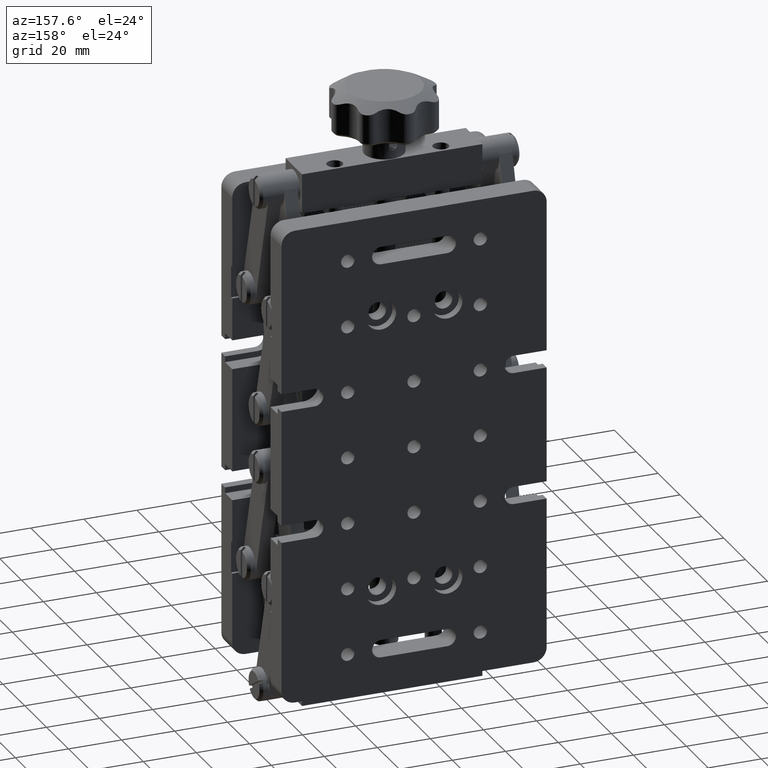
[diagram: clean part render]
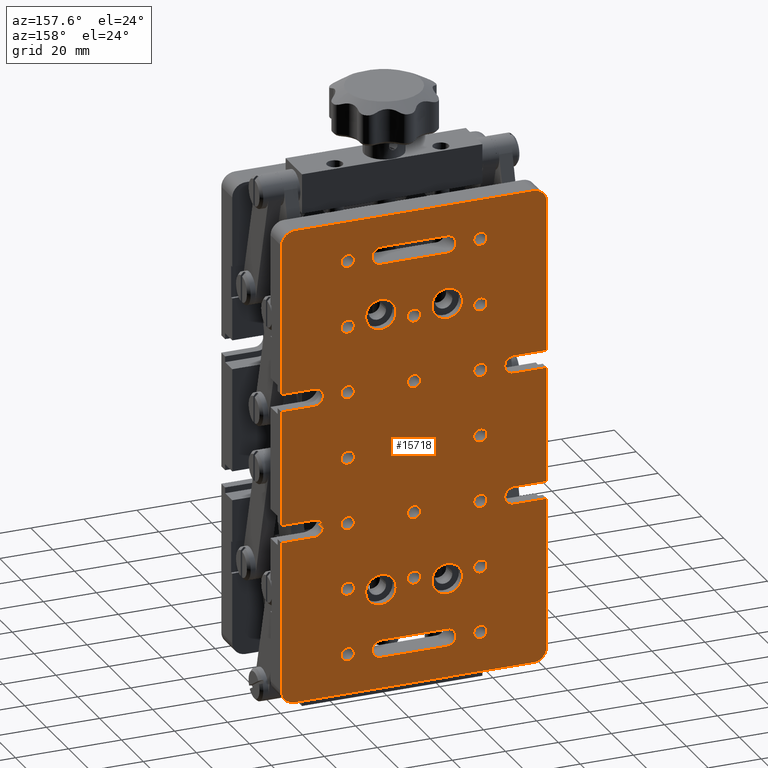
[diagram: same view with one face highlighted and labeled with its STEP entity id]
A machine part, auxiliary view. The second image highlights one B-rep face of the part: STEP entity #15718.
In plain terms, the highlighted planar face has unit normal (0, 1, -0).
Its self-contained STEP definition (entity closure, byte-faithful):
#51 = ORIENTED_EDGE ( 'NONE', *, *, #603, .F. ) ;
#69 = CIRCLE ( 'NONE', #20498, 2.499999999999988500 ) ;
#148 = DIRECTION ( 'NONE',  ( 1.000000000000000000, 0.0000000000000000000, 0.0000000000000000000 ) ) ;
#221 = CARTESIAN_POINT ( 'NONE',  ( 50.00000000000004300, 44.99999999999999300, -90.00000000000002800 ) ) ;
#236 = CIRCLE ( 'NONE', #2185, 3.299999999999976700 ) ;
#243 = VERTEX_POINT ( 'NONE', #22636 ) ;
#317 = DIRECTION ( 'NONE',  ( 1.000000000000000000, 0.0000000000000000000, 0.0000000000000000000 ) ) ;
#424 = EDGE_CURVE ( 'NONE', #11842, #3183, #13426, .T. ) ;
#497 = CARTESIAN_POINT ( 'NONE',  ( 5.885607807369282400E-014, 44.99999999999999300, -21.69999999999998500 ) ) ;
#502 = ORIENTED_EDGE ( 'NONE', *, *, #12484, .F. ) ;
#505 = VERTEX_POINT ( 'NONE', #7508 ) ;
#506 = AXIS2_PLACEMENT_3D ( 'NONE', #7079, #15194, #13247 ) ;
#528 = EDGE_CURVE ( 'NONE', #20243, #25769, #12172, .T. ) ;
#529 = EDGE_LOOP ( 'NONE', ( #5735, #12300 ) ) ;
#532 = CIRCLE ( 'NONE', #15054, 5.749999999999991100 ) ;
#537 = DIRECTION ( 'NONE',  ( 1.000000000000000000, 0.0000000000000000000, 0.0000000000000000000 ) ) ;
#595 = CARTESIAN_POINT ( 'NONE',  ( -24.99999999999985400, 44.99999999999999300, -24.99999999999981900 ) ) ;
#603 = EDGE_CURVE ( 'NONE', #1551, #1636, #1192, .T. ) ;
#633 = ORIENTED_EDGE ( 'NONE', *, *, #20766, .F. ) ;
#644 = CARTESIAN_POINT ( 'NONE',  ( 24.99999999999974400, 44.99999999999999300, -25.00000000000017100 ) ) ;
#692 = LINE ( 'NONE', #2795, #23971 ) ;
#708 = AXIS2_PLACEMENT_3D ( 'NONE', #7744, #21613, #11711 ) ;
#792 = VERTEX_POINT ( 'NONE', #16356 ) ;
#923 = EDGE_CURVE ( 'NONE', #10483, #16916, #21909, .T. ) ;
#941 = VERTEX_POINT ( 'NONE', #9120 ) ;
#1031 = CARTESIAN_POINT ( 'NONE',  ( 12.50000000000004300, 44.99999999999998600, 78.29999999999998300 ) ) ;
#1068 = AXIS2_PLACEMENT_3D ( 'NONE', #4346, #4502, #6500 ) ;
#1144 = VERTEX_POINT ( 'NONE', #21871 ) ;
#1151 = CIRCLE ( 'NONE', #3005, 2.499999999999988500 ) ;
#1158 = EDGE_CURVE ( 'NONE', #3944, #14222, #8397, .T. ) ;
#1192 = CIRCLE ( 'NONE', #11852, 2.499999999999988500 ) ;
#1228 = CIRCLE ( 'NONE', #15728, 2.499999999999988500 ) ;
#1273 = EDGE_CURVE ( 'NONE', #1144, #17252, #2513, .T. ) ;
#1320 = EDGE_LOOP ( 'NONE', ( #16924, #12061, #20566, #21111, #502 ) ) ;
#1369 = DIRECTION ( 'NONE',  ( 1.000000000000000000, 0.0000000000000000000, 0.0000000000000000000 ) ) ;
#1382 = CARTESIAN_POINT ( 'NONE',  ( -12.49999999999995000, 44.99999999999999300, 71.70000000000001700 ) ) ;
#1387 = DIRECTION ( 'NONE',  ( -2.718255189475320900E-016, 1.000000000000000000, -3.227577155063917700E-016 ) ) ;
#1413 = EDGE_CURVE ( 'NONE', #941, #16360, #1228, .T. ) ;
#1551 = VERTEX_POINT ( 'NONE', #11507 ) ;
#1566 = CARTESIAN_POINT ( 'NONE',  ( 22.50000000000006800, 44.99999999999999300, 2.698409452711590300E-015 ) ) ;
#1580 = DIRECTION ( 'NONE',  ( 1.000000000000000000, 0.0000000000000000000, 0.0000000000000000000 ) ) ;
#1612 = VERTEX_POINT ( 'NONE', #9863 ) ;
#1626 = CARTESIAN_POINT ( 'NONE',  ( 37.50000000000007800, 44.99999999999999300, 21.70000000000000300 ) ) ;
#1636 = VERTEX_POINT ( 'NONE', #1824 ) ;
#1645 = VERTEX_POINT ( 'NONE', #17785 ) ;
#1693 = CARTESIAN_POINT ( 'NONE',  ( 27.50000000000004600, 44.99999999999999300, 75.00000000000002800 ) ) ;
#1741 = DIRECTION ( 'NONE',  ( -2.718255189475320900E-016, 1.000000000000000000, -3.227577155063917700E-016 ) ) ;
#1771 = VERTEX_POINT ( 'NONE', #18204 ) ;
#1772 = CIRCLE ( 'NONE', #16639, 3.299999999999976700 ) ;
#1805 = LINE ( 'NONE', #7019, #10782 ) ;
#1824 = CARTESIAN_POINT ( 'NONE',  ( 22.49999999999997900, 44.99999999999999300, 25.00000000000000700 ) ) ;
#1827 = CARTESIAN_POINT ( 'NONE',  ( 37.50000000000007800, 44.99999999999999300, -21.69999999999999600 ) ) ;
#1840 = EDGE_CURVE ( 'NONE', #19819, #12153, #1965, .T. ) ;
#1921 = EDGE_CURVE ( 'NONE', #19052, #18454, #15634, .T. ) ;
#1929 = EDGE_CURVE ( 'NONE', #22778, #17917, #19651, .T. ) ;
#1930 = CARTESIAN_POINT ( 'NONE',  ( -27.49999999999993600, 44.99999999999999300, 50.00000000000000700 ) ) ;
#1965 = CIRCLE ( 'NONE', #4420, 2.499999999999988500 ) ;
#2034 = AXIS2_PLACEMENT_3D ( 'NONE', #23692, #7860, #21739 ) ;
#2126 = EDGE_CURVE ( 'NONE', #6657, #19578, #19628, .T. ) ;
#2129 = DIRECTION ( 'NONE',  ( -1.541976423090495900E-016, 3.227577155063918100E-016, -1.000000000000000000 ) ) ;
#2162 = ORIENTED_EDGE ( 'NONE', *, *, #8451, .F. ) ;
#2167 = EDGE_CURVE ( 'NONE', #7648, #14933, #23378, .T. ) ;
#2185 = AXIS2_PLACEMENT_3D ( 'NONE', #16095, #4115, #21972 ) ;
#2188 = LINE ( 'NONE', #3018, #16753 ) ;
#2274 = LINE ( 'NONE', #23828, #18088 ) ;
#2300 = AXIS2_PLACEMENT_3D ( 'NONE', #13442, #1741, #1580 ) ;
#2377 = VECTOR ( 'NONE', #5306, 1000.000000000000000 ) ;
#2379 = ORIENTED_EDGE ( 'NONE', *, *, #8096, .T. ) ;
#2478 = CARTESIAN_POINT ( 'NONE',  ( 50.00000000000007100, 44.99999999999999300, -21.69999999999999900 ) ) ;
#2488 = ORIENTED_EDGE ( 'NONE', *, *, #12823, .F. ) ;
#2504 = VECTOR ( 'NONE', #2927, 1000.000000000000000 ) ;
#2511 = LINE ( 'NONE', #2671, #20189 ) ;
#2513 = CIRCLE ( 'NONE', #6250, 2.499999999999988500 ) ;
#2538 = CARTESIAN_POINT ( 'NONE',  ( 50.00000000000007100, 44.99999999999999300, 21.70000000000000600 ) ) ;
#2575 = AXIS2_PLACEMENT_3D ( 'NONE', #18598, #12668, #18849 ) ;
#2622 = DIRECTION ( 'NONE',  ( 1.000000000000000000, 0.0000000000000000000, 0.0000000000000000000 ) ) ;
#2664 = DIRECTION ( 'NONE',  ( 1.000000000000000000, 0.0000000000000000000, 0.0000000000000000000 ) ) ;
#2671 = CARTESIAN_POINT ( 'NONE',  ( 4.681015825650987600E-014, 44.99999999999999300, 21.69999999999999200 ) ) ;
#2734 = DIRECTION ( 'NONE',  ( -2.718255189475320900E-016, 1.000000000000000000, -3.227577155063917700E-016 ) ) ;
#2735 = CIRCLE ( 'NONE', #6937, 2.499999999999988500 ) ;
#2792 = DIRECTION ( 'NONE',  ( -2.718255189475320900E-016, 1.000000000000000000, -3.227577155063917700E-016 ) ) ;
#2795 = CARTESIAN_POINT ( 'NONE',  ( -12.49999999999995000, 44.99999999999999300, 71.70000000000001700 ) ) ;
#2864 = CIRCLE ( 'NONE', #4024, 2.499999999999988500 ) ;
#2924 = AXIS2_PLACEMENT_3D ( 'NONE', #23429, #9502, #3531 ) ;
#2925 = ORIENTED_EDGE ( 'NONE', *, *, #20577, .F. ) ;
#2927 = DIRECTION ( 'NONE',  ( 1.000000000000000000, -2.718255189475320900E-016, -2.775557561562891400E-016 ) ) ;
#2943 = DIRECTION ( 'NONE',  ( -2.718255189475320900E-016, 1.000000000000000000, -3.227577155063917700E-016 ) ) ;
#2966 = AXIS2_PLACEMENT_3D ( 'NONE', #19938, #23939, #148 ) ;
#2997 = DIRECTION ( 'NONE',  ( -2.718255189475320900E-016, 1.000000000000000000, -3.227577155063917700E-016 ) ) ;
#3005 = AXIS2_PLACEMENT_3D ( 'NONE', #4956, #5560, #19461 ) ;
#3018 = CARTESIAN_POINT ( 'NONE',  ( -12.49999999999995200, 45.00000000000000000, -78.29999999999996900 ) ) ;
#3024 = CARTESIAN_POINT ( 'NONE',  ( -44.99999999999992900, 44.99999999999998600, 89.99999999999997200 ) ) ;
#3030 = LINE ( 'NONE', #7643, #3643 ) ;
#3089 = DIRECTION ( 'NONE',  ( -2.718255189475320900E-016, 1.000000000000000000, -3.227577155063917700E-016 ) ) ;
#3119 = CARTESIAN_POINT ( 'NONE',  ( 12.50000000000004300, 44.99999999999998600, 75.00000000000000000 ) ) ;
#3147 = CIRCLE ( 'NONE', #12443, 3.299999999999997200 ) ;
#3183 = VERTEX_POINT ( 'NONE', #5955 ) ;
#3204 = DIRECTION ( 'NONE',  ( 1.000000000000000000, 0.0000000000000000000, 0.0000000000000000000 ) ) ;
#3269 = ORIENTED_EDGE ( 'NONE', *, *, #21695, .T. ) ;
#3333 = CARTESIAN_POINT ( 'NONE',  ( -37.49999999999996400, 44.99999999999999300, 25.00000000000000400 ) ) ;
#3356 = FACE_BOUND ( 'NONE', #3665, .T. ) ;
#3368 = EDGE_LOOP ( 'NONE', ( #14704, #19494 ) ) ;
#3378 = DIRECTION ( 'NONE',  ( 1.000000000000000000, 0.0000000000000000000, 0.0000000000000000000 ) ) ;
#3391 = CIRCLE ( 'NONE', #1068, 4.999999999999997300 ) ;
#3405 = PLANE ( 'NONE',  #8365 ) ;
#3427 = DIRECTION ( 'NONE',  ( -2.718255189475320900E-016, 1.000000000000000000, -3.227577155063917700E-016 ) ) ;
#3471 = CARTESIAN_POINT ( 'NONE',  ( 5.283311816510134300E-014, 44.99999999999999300, 25.00000000000000400 ) ) ;
#3519 = AXIS2_PLACEMENT_3D ( 'NONE', #15365, #24990, #1369 ) ;
#3526 = ORIENTED_EDGE ( 'NONE', *, *, #424, .F. ) ;
#3531 = DIRECTION ( 'NONE',  ( 1.000000000000000000, 0.0000000000000000000, 0.0000000000000000000 ) ) ;
#3540 = VERTEX_POINT ( 'NONE', #5240 ) ;
#3634 = ORIENTED_EDGE ( 'NONE', *, *, #5338, .T. ) ;
#3643 = VECTOR ( 'NONE', #9655, 1000.000000000000000 ) ;
#3665 = EDGE_LOOP ( 'NONE', ( #20030, #24469 ) ) ;
#3688 = FACE_OUTER_BOUND ( 'NONE', #6501, .T. ) ;
#3692 = CARTESIAN_POINT ( 'NONE',  ( -49.99999999999996400, 45.00000000000000000, -28.29999999999999700 ) ) ;
#3699 = CARTESIAN_POINT ( 'NONE',  ( -22.49999999999995700, 44.99999999999999300, 75.00000000000001400 ) ) ;
#3723 = ORIENTED_EDGE ( 'NONE', *, *, #22708, .F. ) ;
#3763 = EDGE_CURVE ( 'NONE', #11578, #23624, #9968, .T. ) ;
#3944 = VERTEX_POINT ( 'NONE', #19968 ) ;
#3969 = ORIENTED_EDGE ( 'NONE', *, *, #23727, .T. ) ;
#3973 = FACE_BOUND ( 'NONE', #7068, .T. ) ;
#3986 = VECTOR ( 'NONE', #17758, 1000.000000000000000 ) ;
#3992 = DIRECTION ( 'NONE',  ( -2.718255189475320900E-016, 1.000000000000000000, -3.227577155063917700E-016 ) ) ;
#4024 = AXIS2_PLACEMENT_3D ( 'NONE', #23157, #25331, #11137 ) ;
#4100 = VERTEX_POINT ( 'NONE', #7870 ) ;
#4102 = LINE ( 'NONE', #4201, #20865 ) ;
#4115 = DIRECTION ( 'NONE',  ( -2.718255189475320900E-016, 1.000000000000000000, -3.227577155063917700E-016 ) ) ;
#4117 = DIRECTION ( 'NONE',  ( -2.718255189475320900E-016, 1.000000000000000000, -3.227577155063917700E-016 ) ) ;
#4185 = VECTOR ( 'NONE', #2129, 1000.000000000000000 ) ;
#4201 = CARTESIAN_POINT ( 'NONE',  ( 5.283311816510134300E-014, 44.99999999999999300, 28.30000000000000400 ) ) ;
#4207 = CIRCLE ( 'NONE', #10198, 5.749999999999991100 ) ;
#4263 = AXIS2_PLACEMENT_3D ( 'NONE', #16429, #18501, #18428 ) ;
#4341 = CIRCLE ( 'NONE', #2034, 2.499999999999988500 ) ;
#4346 = CARTESIAN_POINT ( 'NONE',  ( -44.99999999999996400, 45.00000000000000000, -85.00000000000001400 ) ) ;
#4418 = ORIENTED_EDGE ( 'NONE', *, *, #22753, .F. ) ;
#4420 = AXIS2_PLACEMENT_3D ( 'NONE', #12519, #14387, #8808 ) ;
#4502 = DIRECTION ( 'NONE',  ( -2.718255189475320900E-016, 1.000000000000000000, -3.227577155063917700E-016 ) ) ;
#4552 = VERTEX_POINT ( 'NONE', #7970 ) ;
#4555 = CARTESIAN_POINT ( 'NONE',  ( 2.500000000000041300, 44.99999999999999300, 50.00000000000000700 ) ) ;
#4578 = CARTESIAN_POINT ( 'NONE',  ( 22.49999999999975500, 44.99999999999999300, -25.00000000000016700 ) ) ;
#4582 = FACE_BOUND ( 'NONE', #3368, .T. ) ;
#4750 = DIRECTION ( 'NONE',  ( -1.000000000000000000, 2.718255189475323400E-016, 0.0000000000000000000 ) ) ;
#4759 = EDGE_LOOP ( 'NONE', ( #4418, #2162 ) ) ;
#4793 = ORIENTED_EDGE ( 'NONE', *, *, #18256, .T. ) ;
#4822 = DIRECTION ( 'NONE',  ( -2.718255189475320900E-016, 1.000000000000000000, -3.227577155063917700E-016 ) ) ;
#4827 = AXIS2_PLACEMENT_3D ( 'NONE', #22486, #10581, #24480 ) ;
#4885 = CIRCLE ( 'NONE', #9428, 2.499999999999988500 ) ;
#4890 = EDGE_LOOP ( 'NONE', ( #25108, #13961 ) ) ;
#4908 = FACE_BOUND ( 'NONE', #8149, .T. ) ;
#4951 = CIRCLE ( 'NONE', #8806, 2.499999999999988500 ) ;
#4956 = CARTESIAN_POINT ( 'NONE',  ( 25.00000000000005700, 44.99999999999999300, 1.390782574966468300E-015 ) ) ;
#4968 = DIRECTION ( 'NONE',  ( 1.000000000000000000, 0.0000000000000000000, 0.0000000000000000000 ) ) ;
#5085 = EDGE_CURVE ( 'NONE', #10483, #13855, #13621, .T. ) ;
#5240 = CARTESIAN_POINT ( 'NONE',  ( 34.20000000000008100, 44.99999999999999300, 25.00000000000000700 ) ) ;
#5297 = DIRECTION ( 'NONE',  ( 2.718255189475322900E-016, 1.000000000000000000, -3.227577155063917700E-016 ) ) ;
#5306 = DIRECTION ( 'NONE',  ( 1.541976423090495900E-016, -3.227577155063918100E-016, 1.000000000000000000 ) ) ;
#5338 = EDGE_CURVE ( 'NONE', #1645, #17373, #8336, .T. ) ;
#5383 = EDGE_LOOP ( 'NONE', ( #20645, #9254 ) ) ;
#5454 = EDGE_CURVE ( 'NONE', #18231, #25594, #18050, .T. ) ;
#5496 = DIRECTION ( 'NONE',  ( 1.000000000000000000, 0.0000000000000000000, 0.0000000000000000000 ) ) ;
#5560 = DIRECTION ( 'NONE',  ( -2.718255189475320900E-016, 1.000000000000000000, -3.227577155063917700E-016 ) ) ;
#5586 = CIRCLE ( 'NONE', #11251, 4.999999999999997300 ) ;
#5589 = ORIENTED_EDGE ( 'NONE', *, *, #14350, .F. ) ;
#5607 = VECTOR ( 'NONE', #23807, 1000.000000000000000 ) ;
#5629 = EDGE_CURVE ( 'NONE', #15625, #14787, #10867, .T. ) ;
#5652 = AXIS2_PLACEMENT_3D ( 'NONE', #24575, #2792, #20574 ) ;
#5661 = DIRECTION ( 'NONE',  ( -2.718255189475320900E-016, 1.000000000000000000, -3.227577155063917700E-016 ) ) ;
#5734 = CARTESIAN_POINT ( 'NONE',  ( -27.49999999999993200, 44.99999999999999300, 2.698409452711591900E-015 ) ) ;
#5735 = ORIENTED_EDGE ( 'NONE', *, *, #10780, .F. ) ;
#5742 = AXIS2_PLACEMENT_3D ( 'NONE', #19314, #15433, #25239 ) ;
#5910 = VERTEX_POINT ( 'NONE', #3024 ) ;
#5955 = CARTESIAN_POINT ( 'NONE',  ( 34.20000000000008100, 44.99999999999999300, -24.99999999999973000 ) ) ;
#6005 = ORIENTED_EDGE ( 'NONE', *, *, #23895, .F. ) ;
#6026 = VERTEX_POINT ( 'NONE', #16967 ) ;
#6077 = ORIENTED_EDGE ( 'NONE', *, *, #11357, .F. ) ;
#6153 = CARTESIAN_POINT ( 'NONE',  ( -49.99999999999993600, 44.99999999999999300, 84.99999999999991500 ) ) ;
#6208 = DIRECTION ( 'NONE',  ( -1.000000000000000000, 2.718255189475322900E-016, 0.0000000000000000000 ) ) ;
#6247 = DIRECTION ( 'NONE',  ( 1.000000000000000000, 0.0000000000000000000, 0.0000000000000000000 ) ) ;
#6250 = AXIS2_PLACEMENT_3D ( 'NONE', #644, #10663, #18244 ) ;
#6281 = EDGE_LOOP ( 'NONE', ( #22347, #17178 ) ) ;
#6292 = DIRECTION ( 'NONE',  ( 1.000000000000000000, -2.718255189475323900E-016, 2.775557561562891800E-016 ) ) ;
#6404 = VERTEX_POINT ( 'NONE', #24563 ) ;
#6421 = VERTEX_POINT ( 'NONE', #1031 ) ;
#6428 = ORIENTED_EDGE ( 'NONE', *, *, #14137, .F. ) ;
#6461 = ORIENTED_EDGE ( 'NONE', *, *, #15384, .T. ) ;
#6486 = ORIENTED_EDGE ( 'NONE', *, *, #2167, .F. ) ;
#6501 = EDGE_LOOP ( 'NONE', ( #2925, #15012, #3526, #5589, #3634, #17985, #14936, #3969, #4793, #12076, #20394, #21590, #14502, #23582, #22540, #10031, #3269, #23440, #2379, #21900, #6461, #20990, #7245, #19918, #7137, #16001 ) ) ;
#6500 = DIRECTION ( 'NONE',  ( 1.000000000000000000, 0.0000000000000000000, 0.0000000000000000000 ) ) ;
#6505 = AXIS2_PLACEMENT_3D ( 'NONE', #21959, #16252, #6592 ) ;
#6507 = CIRCLE ( 'NONE', #13778, 2.499999999999988500 ) ;
#6542 = DIRECTION ( 'NONE',  ( -2.718255189475320900E-016, 1.000000000000000000, -3.227577155063917700E-016 ) ) ;
#6592 = DIRECTION ( 'NONE',  ( 1.000000000000000000, 0.0000000000000000000, 0.0000000000000000000 ) ) ;
#6603 = CARTESIAN_POINT ( 'NONE',  ( 45.00000000000005000, 45.00000000000000000, -90.00000000000002800 ) ) ;
#6622 = CARTESIAN_POINT ( 'NONE',  ( 5.283311816510134300E-014, 44.99999999999999300, 50.00000000000000700 ) ) ;
#6635 = ORIENTED_EDGE ( 'NONE', *, *, #9959, .F. ) ;
#6657 = VERTEX_POINT ( 'NONE', #8953 ) ;
#6781 = CIRCLE ( 'NONE', #12801, 2.499999999999988500 ) ;
#6789 = ORIENTED_EDGE ( 'NONE', *, *, #16499, .F. ) ;
#6798 = DIRECTION ( 'NONE',  ( 1.000000000000000000, 0.0000000000000000000, 0.0000000000000000000 ) ) ;
#6804 = EDGE_CURVE ( 'NONE', #18888, #25298, #12547, .T. ) ;
#6815 = CIRCLE ( 'NONE', #12817, 2.499999999999988500 ) ;
#6825 = AXIS2_PLACEMENT_3D ( 'NONE', #9297, #16860, #4968 ) ;
#6827 = CARTESIAN_POINT ( 'NONE',  ( 37.50000000000007800, 44.99999999999999300, -28.29999999999999700 ) ) ;
#6937 = AXIS2_PLACEMENT_3D ( 'NONE', #10261, #21816, #317 ) ;
#6984 = AXIS2_PLACEMENT_3D ( 'NONE', #9920, #4117, #18006 ) ;
#7019 = CARTESIAN_POINT ( 'NONE',  ( 50.00000000000007100, 44.99999999999992200, 89.99999999999998600 ) ) ;
#7053 = DIRECTION ( 'NONE',  ( -1.000000000000000000, 0.0000000000000000000, 0.0000000000000000000 ) ) ;
#7068 = EDGE_LOOP ( 'NONE', ( #20038, #17351 ) ) ;
#7079 = CARTESIAN_POINT ( 'NONE',  ( -25.00000000000039400, 44.99999999999999300, -49.99999999999981500 ) ) ;
#7083 = DIRECTION ( 'NONE',  ( 1.000000000000000000, 0.0000000000000000000, 0.0000000000000000000 ) ) ;
#7137 = ORIENTED_EDGE ( 'NONE', *, *, #21414, .F. ) ;
#7151 = CARTESIAN_POINT ( 'NONE',  ( 6.750000000000048000, 44.99999999999999300, -52.49999999999998600 ) ) ;
#7190 = CARTESIAN_POINT ( 'NONE',  ( 22.50000000000006800, 44.99999999999999300, 75.00000000000002800 ) ) ;
#7245 = ORIENTED_EDGE ( 'NONE', *, *, #17221, .F. ) ;
#7256 = VECTOR ( 'NONE', #17556, 1000.000000000000000 ) ;
#7282 = EDGE_CURVE ( 'NONE', #17373, #15625, #24673, .T. ) ;
#7296 = DIRECTION ( 'NONE',  ( 1.000000000000000000, 0.0000000000000000000, 0.0000000000000000000 ) ) ;
#7454 = VERTEX_POINT ( 'NONE', #11075 ) ;
#7456 = VERTEX_POINT ( 'NONE', #13090 ) ;
#7508 = CARTESIAN_POINT ( 'NONE',  ( -27.50000000000037700, 44.99999999999999300, -74.99999999999984400 ) ) ;
#7510 = CARTESIAN_POINT ( 'NONE',  ( 6.750000000000064800, 44.99999999999998600, 52.50000000000000700 ) ) ;
#7538 = DIRECTION ( 'NONE',  ( 1.000000000000000000, -2.718255189475322900E-016, 0.0000000000000000000 ) ) ;
#7582 = AXIS2_PLACEMENT_3D ( 'NONE', #20220, #18136, #6247 ) ;
#7620 = VERTEX_POINT ( 'NONE', #9636 ) ;
#7643 = CARTESIAN_POINT ( 'NONE',  ( -12.49999999999997000, 44.99999999999999300, 78.29999999999996900 ) ) ;
#7648 = VERTEX_POINT ( 'NONE', #1930 ) ;
#7735 = VECTOR ( 'NONE', #6292, 1000.000000000000000 ) ;
#7744 = CARTESIAN_POINT ( 'NONE',  ( 12.50000000000005700, 44.99999999999998600, 52.50000000000000700 ) ) ;
#7758 = CARTESIAN_POINT ( 'NONE',  ( -37.49999999999996400, 44.99999999999999300, 28.30000000000000400 ) ) ;
#7860 = DIRECTION ( 'NONE',  ( -2.718255189475320900E-016, 1.000000000000000000, -3.227577155063917700E-016 ) ) ;
#7870 = CARTESIAN_POINT ( 'NONE',  ( -49.99999999999996400, 45.00000000000006400, -85.00000000000001400 ) ) ;
#7891 = VERTEX_POINT ( 'NONE', #3699 ) ;
#7939 = EDGE_CURVE ( 'NONE', #11405, #19052, #16735, .T. ) ;
#7969 = ORIENTED_EDGE ( 'NONE', *, *, #20385, .F. ) ;
#7970 = CARTESIAN_POINT ( 'NONE',  ( -27.49999999999984400, 44.99999999999999300, -24.99999999999981500 ) ) ;
#7989 = AXIS2_PLACEMENT_3D ( 'NONE', #17553, #5661, #7296 ) ;
#8012 = VERTEX_POINT ( 'NONE', #18526 ) ;
#8027 = CARTESIAN_POINT ( 'NONE',  ( 5.283311816510134300E-014, 44.99999999999999300, -28.29999999999999700 ) ) ;
#8096 = EDGE_CURVE ( 'NONE', #5910, #19333, #1805, .T. ) ;
#8101 = EDGE_CURVE ( 'NONE', #13110, #4552, #4885, .T. ) ;
#8149 = EDGE_LOOP ( 'NONE', ( #22995, #633 ) ) ;
#8250 = CARTESIAN_POINT ( 'NONE',  ( 12.50000000000005700, 44.99999999999998600, 52.50000000000000700 ) ) ;
#8298 = CARTESIAN_POINT ( 'NONE',  ( 45.00000000000007800, 44.99999999999998600, 84.99999999999997200 ) ) ;
#8336 = LINE ( 'NONE', #22396, #12048 ) ;
#8365 = AXIS2_PLACEMENT_3D ( 'NONE', #17274, #5297, #15228 ) ;
#8397 = CIRCLE ( 'NONE', #14388, 5.749999999999991100 ) ;
#8436 = VERTEX_POINT ( 'NONE', #11311 ) ;
#8451 = EDGE_CURVE ( 'NONE', #16987, #21526, #2735, .T. ) ;
#8527 = AXIS2_PLACEMENT_3D ( 'NONE', #17344, #1387, #13342 ) ;
#8627 = FACE_BOUND ( 'NONE', #11367, .T. ) ;
#8643 = CARTESIAN_POINT ( 'NONE',  ( 12.50000000000003600, 44.99999999999999300, -75.00000000000000000 ) ) ;
#8758 = VECTOR ( 'NONE', #6208, 1000.000000000000000 ) ;
#8806 = AXIS2_PLACEMENT_3D ( 'NONE', #6622, #24433, #22615 ) ;
#8808 = DIRECTION ( 'NONE',  ( 1.000000000000000000, 0.0000000000000000000, 0.0000000000000000000 ) ) ;
#8809 = CARTESIAN_POINT ( 'NONE',  ( -22.50000000000040500, 44.99999999999999300, -49.99999999999981500 ) ) ;
#8953 = CARTESIAN_POINT ( 'NONE',  ( -22.49999999999986900, 44.99999999999999300, 25.00000000000000400 ) ) ;
#9007 = DIRECTION ( 'NONE',  ( -2.718255189475320900E-016, 1.000000000000000000, -3.227577155063917700E-016 ) ) ;
#9024 = CIRCLE ( 'NONE', #13322, 2.499999999999988500 ) ;
#9044 = AXIS2_PLACEMENT_3D ( 'NONE', #22818, #12885, #3204 ) ;
#9119 = CARTESIAN_POINT ( 'NONE',  ( -25.00000000000039100, 44.99999999999999300, -74.99999999999984400 ) ) ;
#9120 = CARTESIAN_POINT ( 'NONE',  ( -2.499999999999935600, 44.99999999999999300, 25.00000000000000700 ) ) ;
#9124 = DIRECTION ( 'NONE',  ( -2.718255189475320900E-016, 1.000000000000000000, -3.227577155063917700E-016 ) ) ;
#9155 = CARTESIAN_POINT ( 'NONE',  ( 15.80000000000001100, 44.99999999999999300, -75.00000000000000000 ) ) ;
#9242 = FACE_BOUND ( 'NONE', #18686, .T. ) ;
#9254 = ORIENTED_EDGE ( 'NONE', *, *, #18701, .F. ) ;
#9258 = LINE ( 'NONE', #221, #3986 ) ;
#9287 = EDGE_LOOP ( 'NONE', ( #9309, #3723 ) ) ;
#9297 = CARTESIAN_POINT ( 'NONE',  ( -12.49999999999994500, 44.99999999999999300, 52.50000000000000000 ) ) ;
#9309 = ORIENTED_EDGE ( 'NONE', *, *, #14589, .F. ) ;
#9413 = CARTESIAN_POINT ( 'NONE',  ( -24.99999999999995000, 44.99999999999999300, 50.00000000000000700 ) ) ;
#9428 = AXIS2_PLACEMENT_3D ( 'NONE', #23042, #2997, #18862 ) ;
#9487 = EDGE_CURVE ( 'NONE', #13855, #23703, #21031, .T. ) ;
#9502 = DIRECTION ( 'NONE',  ( -2.718255189475320900E-016, 1.000000000000000000, -3.227577155063917700E-016 ) ) ;
#9535 = VECTOR ( 'NONE', #7538, 1000.000000000000000 ) ;
#9573 = FACE_BOUND ( 'NONE', #9287, .T. ) ;
#9575 = DIRECTION ( 'NONE',  ( -2.718255189475320900E-016, 1.000000000000000000, -3.227577155063917700E-016 ) ) ;
#9590 = DIRECTION ( 'NONE',  ( 1.000000000000000000, 0.0000000000000000000, 0.0000000000000000000 ) ) ;
#9636 = CARTESIAN_POINT ( 'NONE',  ( -6.749999999999953800, 44.99999999999999300, 52.50000000000000000 ) ) ;
#9655 = DIRECTION ( 'NONE',  ( 1.000000000000000000, -2.718255189475323900E-016, 5.551115123125780700E-016 ) ) ;
#9668 = EDGE_LOOP ( 'NONE', ( #15175, #9838 ) ) ;
#9717 = AXIS2_PLACEMENT_3D ( 'NONE', #22484, #18481, #537 ) ;
#9838 = ORIENTED_EDGE ( 'NONE', *, *, #25242, .F. ) ;
#9853 = VERTEX_POINT ( 'NONE', #17499 ) ;
#9863 = CARTESIAN_POINT ( 'NONE',  ( -2.499999999999935600, 44.99999999999999300, 2.698409452711597400E-015 ) ) ;
#9869 = FACE_BOUND ( 'NONE', #9668, .T. ) ;
#9870 = DIRECTION ( 'NONE',  ( -1.000000000000000000, 2.718255189475320900E-016, 2.775557561562891400E-016 ) ) ;
#9908 = CARTESIAN_POINT ( 'NONE',  ( 50.00000000000004300, 44.99999999999999300, -90.00000000000002800 ) ) ;
#9911 = CARTESIAN_POINT ( 'NONE',  ( -12.49999999999996300, 45.00000000000000000, -52.49999999999999300 ) ) ;
#9920 = CARTESIAN_POINT ( 'NONE',  ( 24.99999999999974400, 44.99999999999999300, -25.00000000000017100 ) ) ;
#9959 = EDGE_CURVE ( 'NONE', #243, #7454, #22143, .T. ) ;
#9968 = CIRCLE ( 'NONE', #18821, 2.499999999999988500 ) ;
#10014 = CARTESIAN_POINT ( 'NONE',  ( 24.99999999999996800, 44.99999999999999300, 25.00000000000000400 ) ) ;
#10019 = DIRECTION ( 'NONE',  ( 1.000000000000000000, -2.718255189475322900E-016, 0.0000000000000000000 ) ) ;
#10031 = ORIENTED_EDGE ( 'NONE', *, *, #12816, .F. ) ;
#10074 = CARTESIAN_POINT ( 'NONE',  ( -12.49999999999994500, 44.99999999999999300, 52.50000000000000000 ) ) ;
#10075 = CARTESIAN_POINT ( 'NONE',  ( -24.99999999999994700, 44.99999999999999300, 1.390782574966469900E-015 ) ) ;
#10091 = DIRECTION ( 'NONE',  ( 1.000000000000000000, 0.0000000000000000000, 0.0000000000000000000 ) ) ;
#10110 = VERTEX_POINT ( 'NONE', #23849 ) ;
#10125 = EDGE_CURVE ( 'NONE', #23703, #21572, #19951, .T. ) ;
#10134 = CARTESIAN_POINT ( 'NONE',  ( 2.500000000000041300, 44.99999999999999300, -24.99999999999999600 ) ) ;
#10154 = DIRECTION ( 'NONE',  ( -2.718255189475320900E-016, 1.000000000000000000, -3.227577155063917700E-016 ) ) ;
#10183 = FACE_BOUND ( 'NONE', #15406, .T. ) ;
#10198 = AXIS2_PLACEMENT_3D ( 'NONE', #10074, #24082, #16175 ) ;
#10199 = EDGE_CURVE ( 'NONE', #1771, #24504, #4102, .T. ) ;
#10261 = CARTESIAN_POINT ( 'NONE',  ( 25.00000000000006000, 44.99999999999999300, 50.00000000000000700 ) ) ;
#10335 = ORIENTED_EDGE ( 'NONE', *, *, #3763, .F. ) ;
#10347 = ORIENTED_EDGE ( 'NONE', *, *, #19339, .F. ) ;
#10359 = EDGE_LOOP ( 'NONE', ( #6635, #10784 ) ) ;
#10362 = AXIS2_PLACEMENT_3D ( 'NONE', #3471, #18997, #3378 ) ;
#10370 = EDGE_CURVE ( 'NONE', #7454, #243, #6781, .T. ) ;
#10483 = VERTEX_POINT ( 'NONE', #13197 ) ;
#10485 = DIRECTION ( 'NONE',  ( -1.541976423090495900E-016, 3.227577155063918100E-016, -1.000000000000000000 ) ) ;
#10492 = FACE_BOUND ( 'NONE', #5383, .T. ) ;
#10581 = DIRECTION ( 'NONE',  ( -2.718255189475320900E-016, 1.000000000000000000, -3.227577155063917700E-016 ) ) ;
#10663 = DIRECTION ( 'NONE',  ( -2.718255189475320900E-016, 1.000000000000000000, -3.227577155063917700E-016 ) ) ;
#10717 = CARTESIAN_POINT ( 'NONE',  ( -44.99999999999995700, 45.00000000000000000, -90.00000000000002800 ) ) ;
#10780 = EDGE_CURVE ( 'NONE', #17917, #22778, #24512, .T. ) ;
#10782 = VECTOR ( 'NONE', #20944, 1000.000000000000000 ) ;
#10784 = ORIENTED_EDGE ( 'NONE', *, *, #10370, .F. ) ;
#10785 = DIRECTION ( 'NONE',  ( -1.000000000000000000, 2.718255189475323900E-016, -2.775557561562891800E-016 ) ) ;
#10851 = EDGE_CURVE ( 'NONE', #24600, #3540, #25106, .T. ) ;
#10867 = LINE ( 'NONE', #25552, #5607 ) ;
#10881 = DIRECTION ( 'NONE',  ( -2.718255189475320900E-016, 1.000000000000000000, -3.227577155063917700E-016 ) ) ;
#10926 = CARTESIAN_POINT ( 'NONE',  ( 27.49999999999960600, 44.99999999999999300, -50.00000000000016300 ) ) ;
#10935 = DIRECTION ( 'NONE',  ( 1.000000000000000000, 0.0000000000000000000, 0.0000000000000000000 ) ) ;
#11011 = CARTESIAN_POINT ( 'NONE',  ( -3.912560916849617800E-013, 44.99999999999999300, -49.99999999999999300 ) ) ;
#11019 = EDGE_CURVE ( 'NONE', #11047, #15685, #18870, .T. ) ;
#11047 = VERTEX_POINT ( 'NONE', #11678 ) ;
#11075 = CARTESIAN_POINT ( 'NONE',  ( -2.500000000000379700, 44.99999999999999300, -49.99999999999999300 ) ) ;
#11083 = CARTESIAN_POINT ( 'NONE',  ( -24.99999999999994700, 44.99999999999999300, 75.00000000000001400 ) ) ;
#11085 = FACE_BOUND ( 'NONE', #22437, .T. ) ;
#11094 = DIRECTION ( 'NONE',  ( 1.000000000000000000, 0.0000000000000000000, 0.0000000000000000000 ) ) ;
#11137 = DIRECTION ( 'NONE',  ( 1.000000000000000000, 0.0000000000000000000, 0.0000000000000000000 ) ) ;
#11251 = AXIS2_PLACEMENT_3D ( 'NONE', #12349, #14291, #12179 ) ;
#11268 = EDGE_CURVE ( 'NONE', #6404, #16916, #22679, .T. ) ;
#11311 = CARTESIAN_POINT ( 'NONE',  ( -12.49999999999997000, 44.99999999999999300, 78.29999999999998300 ) ) ;
#11357 = EDGE_CURVE ( 'NONE', #19578, #6657, #17700, .T. ) ;
#11362 = EDGE_CURVE ( 'NONE', #7620, #24831, #16770, .T. ) ;
#11367 = EDGE_LOOP ( 'NONE', ( #22941, #25766 ) ) ;
#11376 = DIRECTION ( 'NONE',  ( -2.718255189475320900E-016, 1.000000000000000000, -3.227577155063917700E-016 ) ) ;
#11391 = CIRCLE ( 'NONE', #10362, 2.499999999999988500 ) ;
#11405 = VERTEX_POINT ( 'NONE', #17199 ) ;
#11425 = AXIS2_PLACEMENT_3D ( 'NONE', #22351, #24529, #18612 ) ;
#11507 = CARTESIAN_POINT ( 'NONE',  ( 27.49999999999995400, 44.99999999999999300, 25.00000000000000400 ) ) ;
#11578 = VERTEX_POINT ( 'NONE', #5734 ) ;
#11603 = AXIS2_PLACEMENT_3D ( 'NONE', #19348, #21432, #21509 ) ;
#11612 = DIRECTION ( 'NONE',  ( 1.000000000000000000, 0.0000000000000000000, 0.0000000000000000000 ) ) ;
#11644 = CARTESIAN_POINT ( 'NONE',  ( -24.99999999999994700, 44.99999999999999300, 75.00000000000001400 ) ) ;
#11651 = CARTESIAN_POINT ( 'NONE',  ( -12.49999999999996800, 45.00000000000000000, -71.70000000000001700 ) ) ;
#11666 = CARTESIAN_POINT ( 'NONE',  ( 2.500000000000041300, 44.99999999999999300, 25.00000000000000400 ) ) ;
#11678 = CARTESIAN_POINT ( 'NONE',  ( 22.49999999999962700, 44.99999999999999300, -50.00000000000016300 ) ) ;
#11711 = DIRECTION ( 'NONE',  ( 1.000000000000000000, 0.0000000000000000000, 0.0000000000000000000 ) ) ;
#11842 = VERTEX_POINT ( 'NONE', #6827 ) ;
#11852 = AXIS2_PLACEMENT_3D ( 'NONE', #10014, #24023, #17915 ) ;
#11897 = DIRECTION ( 'NONE',  ( 1.541976423090495900E-016, -3.227577155063918100E-016, 1.000000000000000000 ) ) ;
#11958 = DIRECTION ( 'NONE',  ( 1.000000000000000000, -2.718255189475323400E-016, 0.0000000000000000000 ) ) ;
#11998 = VERTEX_POINT ( 'NONE', #1382 ) ;
#12032 = VERTEX_POINT ( 'NONE', #15466 ) ;
#12048 = VECTOR ( 'NONE', #10485, 1000.000000000000000 ) ;
#12061 = ORIENTED_EDGE ( 'NONE', *, *, #15191, .F. ) ;
#12066 = DIRECTION ( 'NONE',  ( 1.000000000000000000, 0.0000000000000000000, 0.0000000000000000000 ) ) ;
#12076 = ORIENTED_EDGE ( 'NONE', *, *, #10125, .F. ) ;
#12101 = VERTEX_POINT ( 'NONE', #1827 ) ;
#12153 = VERTEX_POINT ( 'NONE', #1566 ) ;
#12172 = CIRCLE ( 'NONE', #19863, 2.499999999999988500 ) ;
#12173 = CIRCLE ( 'NONE', #2966, 2.499999999999988500 ) ;
#12179 = DIRECTION ( 'NONE',  ( 1.000000000000000000, 0.0000000000000000000, 0.0000000000000000000 ) ) ;
#12218 = CARTESIAN_POINT ( 'NONE',  ( -37.49999999999996400, 45.00000000000000000, -28.29999999999999700 ) ) ;
#12300 = ORIENTED_EDGE ( 'NONE', *, *, #1929, .F. ) ;
#12349 = CARTESIAN_POINT ( 'NONE',  ( -44.99999999999992900, 44.99999999999998600, 84.99999999999997200 ) ) ;
#12443 = AXIS2_PLACEMENT_3D ( 'NONE', #13930, #21659, #21750 ) ;
#12484 = EDGE_CURVE ( 'NONE', #14203, #11405, #25722, .T. ) ;
#12487 = CIRCLE ( 'NONE', #7582, 2.499999999999988500 ) ;
#12519 = CARTESIAN_POINT ( 'NONE',  ( 25.00000000000005700, 44.99999999999999300, 1.390782574966468300E-015 ) ) ;
#12547 = LINE ( 'NONE', #9908, #4185 ) ;
#12602 = DIRECTION ( 'NONE',  ( 1.000000000000000000, 0.0000000000000000000, 0.0000000000000000000 ) ) ;
#12668 = DIRECTION ( 'NONE',  ( -2.718255189475320900E-016, 1.000000000000000000, -3.227577155063917700E-016 ) ) ;
#12801 = AXIS2_PLACEMENT_3D ( 'NONE', #11011, #9124, #14972 ) ;
#12816 = EDGE_CURVE ( 'NONE', #12032, #18213, #21663, .T. ) ;
#12817 = AXIS2_PLACEMENT_3D ( 'NONE', #18466, #16389, #6798 ) ;
#12823 = EDGE_CURVE ( 'NONE', #6421, #7456, #13885, .T. ) ;
#12854 = CARTESIAN_POINT ( 'NONE',  ( 4.681015825650987600E-014, 44.99999999999999300, -21.69999999999998500 ) ) ;
#12885 = DIRECTION ( 'NONE',  ( -2.718255189475320900E-016, 1.000000000000000000, -3.227577155063917700E-016 ) ) ;
#12933 = EDGE_LOOP ( 'NONE', ( #20056, #16640 ) ) ;
#13060 = CIRCLE ( 'NONE', #22513, 2.499999999999988500 ) ;
#13090 = CARTESIAN_POINT ( 'NONE',  ( 15.80000000000002600, 44.99999999999998600, 75.00000000000000000 ) ) ;
#13101 = EDGE_CURVE ( 'NONE', #25769, #20243, #15233, .T. ) ;
#13110 = VERTEX_POINT ( 'NONE', #18462 ) ;
#13132 = DIRECTION ( 'NONE',  ( -1.000000000000000000, 2.718255189475322900E-016, 0.0000000000000000000 ) ) ;
#13197 = CARTESIAN_POINT ( 'NONE',  ( -49.99999999999996400, 44.99999999999999300, -21.69999999999999900 ) ) ;
#13215 = CARTESIAN_POINT ( 'NONE',  ( 24.99999999999961300, 44.99999999999999300, -75.00000000000019900 ) ) ;
#13219 = AXIS2_PLACEMENT_3D ( 'NONE', #8643, #22373, #22545 ) ;
#13246 = CARTESIAN_POINT ( 'NONE',  ( -37.49999999999996400, 44.99999999999999300, -21.69999999999999600 ) ) ;
#13247 = DIRECTION ( 'NONE',  ( 1.000000000000000000, 0.0000000000000000000, 0.0000000000000000000 ) ) ;
#13322 = AXIS2_PLACEMENT_3D ( 'NONE', #595, #6542, #2664 ) ;
#13342 = DIRECTION ( 'NONE',  ( 1.000000000000000000, 0.0000000000000000000, 0.0000000000000000000 ) ) ;
#13426 = CIRCLE ( 'NONE', #2924, 3.299999999999997200 ) ;
#13442 = CARTESIAN_POINT ( 'NONE',  ( 5.283311816510134300E-014, 44.99999999999999300, 50.00000000000000700 ) ) ;
#13621 = LINE ( 'NONE', #497, #7735 ) ;
#13667 = EDGE_CURVE ( 'NONE', #19445, #11998, #692, .T. ) ;
#13749 = DIRECTION ( 'NONE',  ( -2.718255189475320900E-016, 1.000000000000000000, -3.227577155063917700E-016 ) ) ;
#13778 = AXIS2_PLACEMENT_3D ( 'NONE', #20276, #16370, #22262 ) ;
#13855 = VERTEX_POINT ( 'NONE', #13246 ) ;
#13885 = CIRCLE ( 'NONE', #11603, 3.299999999999983400 ) ;
#13930 = CARTESIAN_POINT ( 'NONE',  ( 37.50000000000007800, 44.99999999999999300, -24.99999999999973400 ) ) ;
#13961 = ORIENTED_EDGE ( 'NONE', *, *, #17496, .F. ) ;
#14137 = EDGE_CURVE ( 'NONE', #15062, #9853, #4341, .T. ) ;
#14165 = AXIS2_PLACEMENT_3D ( 'NONE', #3119, #2943, #7053 ) ;
#14198 = ORIENTED_EDGE ( 'NONE', *, *, #22807, .F. ) ;
#14203 = VERTEX_POINT ( 'NONE', #11651 ) ;
#14222 = VERTEX_POINT ( 'NONE', #7510 ) ;
#14227 = CARTESIAN_POINT ( 'NONE',  ( -27.49999999999993200, 44.99999999999999300, 75.00000000000001400 ) ) ;
#14239 = LINE ( 'NONE', #19790, #23870 ) ;
#14285 = LINE ( 'NONE', #12854, #2504 ) ;
#14291 = DIRECTION ( 'NONE',  ( -2.718255189475320900E-016, 1.000000000000000000, -3.227577155063917700E-016 ) ) ;
#14350 = EDGE_CURVE ( 'NONE', #1645, #11842, #14239, .T. ) ;
#14374 = AXIS2_PLACEMENT_3D ( 'NONE', #9119, #23034, #11094 ) ;
#14387 = DIRECTION ( 'NONE',  ( -2.718255189475320900E-016, 1.000000000000000000, -3.227577155063917700E-016 ) ) ;
#14388 = AXIS2_PLACEMENT_3D ( 'NONE', #8250, #17811, #20058 ) ;
#14398 = AXIS2_PLACEMENT_3D ( 'NONE', #3333, #9575, #23133 ) ;
#14411 = CARTESIAN_POINT ( 'NONE',  ( 27.49999999999960200, 44.99999999999999300, -75.00000000000019900 ) ) ;
#14450 = ORIENTED_EDGE ( 'NONE', *, *, #24985, .F. ) ;
#14502 = ORIENTED_EDGE ( 'NONE', *, *, #923, .T. ) ;
#14523 = VECTOR ( 'NONE', #11958, 1000.000000000000000 ) ;
#14536 = FACE_BOUND ( 'NONE', #23531, .T. ) ;
#14571 = AXIS2_PLACEMENT_3D ( 'NONE', #9413, #11376, #5496 ) ;
#14589 = EDGE_CURVE ( 'NONE', #792, #1612, #17748, .T. ) ;
#14704 = ORIENTED_EDGE ( 'NONE', *, *, #8101, .F. ) ;
#14743 = CIRCLE ( 'NONE', #2575, 2.499999999999988500 ) ;
#14787 = VERTEX_POINT ( 'NONE', #10717 ) ;
#14859 = FACE_BOUND ( 'NONE', #17327, .T. ) ;
#14927 = VERTEX_POINT ( 'NONE', #18121 ) ;
#14933 = VERTEX_POINT ( 'NONE', #22015 ) ;
#14936 = ORIENTED_EDGE ( 'NONE', *, *, #5629, .T. ) ;
#14972 = DIRECTION ( 'NONE',  ( 1.000000000000000000, 0.0000000000000000000, 0.0000000000000000000 ) ) ;
#15012 = ORIENTED_EDGE ( 'NONE', *, *, #20312, .F. ) ;
#15054 = AXIS2_PLACEMENT_3D ( 'NONE', #15734, #3992, #11612 ) ;
#15062 = VERTEX_POINT ( 'NONE', #8809 ) ;
#15066 = CIRCLE ( 'NONE', #14398, 3.299999999999997200 ) ;
#15071 = VERTEX_POINT ( 'NONE', #4555 ) ;
#15083 = CARTESIAN_POINT ( 'NONE',  ( 25.00000000000006000, 44.99999999999999300, 50.00000000000000700 ) ) ;
#15124 = EDGE_LOOP ( 'NONE', ( #22250, #17508 ) ) ;
#15155 = CARTESIAN_POINT ( 'NONE',  ( 27.50000000000005000, 44.99999999999999300, 50.00000000000000700 ) ) ;
#15173 = FACE_BOUND ( 'NONE', #1320, .T. ) ;
#15175 = ORIENTED_EDGE ( 'NONE', *, *, #20805, .F. ) ;
#15191 = EDGE_CURVE ( 'NONE', #18454, #10110, #2188, .T. ) ;
#15194 = DIRECTION ( 'NONE',  ( -2.718255189475320900E-016, 1.000000000000000000, -3.227577155063917700E-016 ) ) ;
#15228 = DIRECTION ( 'NONE',  ( 1.000000000000000000, -2.718255189475322900E-016, 0.0000000000000000000 ) ) ;
#15233 = CIRCLE ( 'NONE', #21772, 2.499999999999988500 ) ;
#15271 = CIRCLE ( 'NONE', #14165, 3.299999999999983400 ) ;
#15311 = EDGE_CURVE ( 'NONE', #7891, #18842, #16823, .T. ) ;
#15365 = CARTESIAN_POINT ( 'NONE',  ( -3.912560916849617800E-013, 44.99999999999999300, -49.99999999999999300 ) ) ;
#15384 = EDGE_CURVE ( 'NONE', #21893, #24504, #9258, .T. ) ;
#15398 = DIRECTION ( 'NONE',  ( -2.718255189475320900E-016, 1.000000000000000000, -3.227577155063917700E-016 ) ) ;
#15406 = EDGE_LOOP ( 'NONE', ( #6789, #10335 ) ) ;
#15433 = DIRECTION ( 'NONE',  ( -2.718255189475320900E-016, 1.000000000000000000, -3.227577155063917700E-016 ) ) ;
#15466 = CARTESIAN_POINT ( 'NONE',  ( -49.99999999999996400, 44.99999999999999300, 28.30000000000000400 ) ) ;
#15472 = EDGE_CURVE ( 'NONE', #17252, #1144, #18397, .T. ) ;
#15510 = FACE_BOUND ( 'NONE', #22874, .T. ) ;
#15533 = AXIS2_PLACEMENT_3D ( 'NONE', #11644, #21218, #9590 ) ;
#15625 = VERTEX_POINT ( 'NONE', #6603 ) ;
#15634 = CIRCLE ( 'NONE', #13219, 3.299999999999976700 ) ;
#15647 = EDGE_CURVE ( 'NONE', #15685, #11047, #14743, .T. ) ;
#15685 = VERTEX_POINT ( 'NONE', #10926 ) ;
#15715 = CARTESIAN_POINT ( 'NONE',  ( 5.885607807369282400E-014, 44.99999999999999300, 21.69999999999999200 ) ) ;
#15718 = ADVANCED_FACE ( 'NONE', ( #3688, #24203, #9869, #4908, #15510, #15173, #11085, #9573, #10183, #14859, #9242, #3973, #10492, #14536, #8627, #25105, #18892, #23585, #3356, #19814, #24483, #25734, #19529, #4582, #23873, #18280 ), #3405, .T. ) ;
#15728 = AXIS2_PLACEMENT_3D ( 'NONE', #18998, #9007, #7083 ) ;
#15734 = CARTESIAN_POINT ( 'NONE',  ( 12.50000000000003900, 44.99999999999999300, -52.49999999999998600 ) ) ;
#15759 = CIRCLE ( 'NONE', #708, 5.749999999999991100 ) ;
#15822 = ORIENTED_EDGE ( 'NONE', *, *, #1158, .F. ) ;
#15915 = CARTESIAN_POINT ( 'NONE',  ( 22.50000000000007100, 44.99999999999999300, 50.00000000000000700 ) ) ;
#16001 = ORIENTED_EDGE ( 'NONE', *, *, #6804, .T. ) ;
#16012 = CARTESIAN_POINT ( 'NONE',  ( -18.24999999999993600, 44.99999999999999300, 52.50000000000000000 ) ) ;
#16095 = CARTESIAN_POINT ( 'NONE',  ( -12.49999999999995900, 45.00000000000000000, -75.00000000000000000 ) ) ;
#16175 = DIRECTION ( 'NONE',  ( 1.000000000000000000, 0.0000000000000000000, 0.0000000000000000000 ) ) ;
#16252 = DIRECTION ( 'NONE',  ( -2.718255189475320900E-016, 1.000000000000000000, -3.227577155063917700E-016 ) ) ;
#16356 = CARTESIAN_POINT ( 'NONE',  ( 2.500000000000041300, 44.99999999999999300, 1.390782574966475600E-015 ) ) ;
#16360 = VERTEX_POINT ( 'NONE', #11666 ) ;
#16370 = DIRECTION ( 'NONE',  ( -2.718255189475320900E-016, 1.000000000000000000, -3.227577155063917700E-016 ) ) ;
#16389 = DIRECTION ( 'NONE',  ( -2.718255189475320900E-016, 1.000000000000000000, -3.227577155063917700E-016 ) ) ;
#16421 = DIRECTION ( 'NONE',  ( -2.718255189475320900E-016, 1.000000000000000000, -3.227577155063917700E-016 ) ) ;
#16425 = ORIENTED_EDGE ( 'NONE', *, *, #2126, .F. ) ;
#16429 = CARTESIAN_POINT ( 'NONE',  ( 45.00000000000005000, 45.00000000000000000, -85.00000000000001400 ) ) ;
#16499 = EDGE_CURVE ( 'NONE', #23624, #11578, #23235, .T. ) ;
#16639 = AXIS2_PLACEMENT_3D ( 'NONE', #20519, #2734, #22765 ) ;
#16640 = ORIENTED_EDGE ( 'NONE', *, *, #11019, .F. ) ;
#16660 = AXIS2_PLACEMENT_3D ( 'NONE', #23040, #3089, #10935 ) ;
#16700 = CARTESIAN_POINT ( 'NONE',  ( 12.50000000000006200, 44.99999999999998600, 71.70000000000001700 ) ) ;
#16735 = CIRCLE ( 'NONE', #11425, 3.299999999999976700 ) ;
#16753 = VECTOR ( 'NONE', #13132, 1000.000000000000000 ) ;
#16770 = CIRCLE ( 'NONE', #6825, 5.749999999999991100 ) ;
#16823 = CIRCLE ( 'NONE', #15533, 2.499999999999988500 ) ;
#16860 = DIRECTION ( 'NONE',  ( -2.718255189475320900E-016, 1.000000000000000000, -3.227577155063917700E-016 ) ) ;
#16915 = LINE ( 'NONE', #19580, #7256 ) ;
#16916 = VERTEX_POINT ( 'NONE', #25110 ) ;
#16924 = ORIENTED_EDGE ( 'NONE', *, *, #24766, .F. ) ;
#16967 = CARTESIAN_POINT ( 'NONE',  ( -18.24999999999995400, 45.00000000000000000, -52.49999999999999300 ) ) ;
#16987 = VERTEX_POINT ( 'NONE', #15915 ) ;
#17004 = CIRCLE ( 'NONE', #5652, 5.749999999999991100 ) ;
#17063 = EDGE_CURVE ( 'NONE', #22973, #22769, #532, .T. ) ;
#17178 = ORIENTED_EDGE ( 'NONE', *, *, #528, .F. ) ;
#17198 = CARTESIAN_POINT ( 'NONE',  ( -49.99999999999996400, 45.00000000000006400, -90.00000000000002800 ) ) ;
#17199 = CARTESIAN_POINT ( 'NONE',  ( 12.50000000000004400, 44.99999999999999300, -71.70000000000001700 ) ) ;
#17221 = EDGE_CURVE ( 'NONE', #3540, #1771, #22248, .T. ) ;
#17252 = VERTEX_POINT ( 'NONE', #4578 ) ;
#17274 = CARTESIAN_POINT ( 'NONE',  ( 5.283311816510134300E-014, 44.99999999999999300, 1.390782574966475600E-015 ) ) ;
#17327 = EDGE_LOOP ( 'NONE', ( #16425, #6077 ) ) ;
#17344 = CARTESIAN_POINT ( 'NONE',  ( 24.99999999999961600, 44.99999999999999300, -50.00000000000016300 ) ) ;
#17351 = ORIENTED_EDGE ( 'NONE', *, *, #22037, .F. ) ;
#17373 = VERTEX_POINT ( 'NONE', #22994 ) ;
#17410 = CARTESIAN_POINT ( 'NONE',  ( 22.49999999999962300, 44.99999999999999300, -75.00000000000019900 ) ) ;
#17424 = EDGE_LOOP ( 'NONE', ( #51, #22193 ) ) ;
#17496 = EDGE_CURVE ( 'NONE', #24831, #7620, #4207, .T. ) ;
#17499 = CARTESIAN_POINT ( 'NONE',  ( -27.50000000000038000, 44.99999999999999300, -49.99999999999981500 ) ) ;
#17508 = ORIENTED_EDGE ( 'NONE', *, *, #18926, .F. ) ;
#17553 = CARTESIAN_POINT ( 'NONE',  ( -37.49999999999996400, 44.99999999999999300, -24.99999999999973400 ) ) ;
#17556 = DIRECTION ( 'NONE',  ( 1.541976423090495900E-016, -3.227577155063918100E-016, 1.000000000000000000 ) ) ;
#17700 = CIRCLE ( 'NONE', #16660, 2.499999999999988500 ) ;
#17748 = CIRCLE ( 'NONE', #4827, 2.499999999999988500 ) ;
#17758 = DIRECTION ( 'NONE',  ( -1.541976423090495900E-016, 3.227577155063918100E-016, -1.000000000000000000 ) ) ;
#17785 = CARTESIAN_POINT ( 'NONE',  ( 50.00000000000007100, 44.99999999999999300, -28.29999999999999700 ) ) ;
#17811 = DIRECTION ( 'NONE',  ( -2.718255189475320900E-016, 1.000000000000000000, -3.227577155063917700E-016 ) ) ;
#17862 = ORIENTED_EDGE ( 'NONE', *, *, #23340, .F. ) ;
#17880 = CARTESIAN_POINT ( 'NONE',  ( -22.49999999999995700, 44.99999999999999300, 1.390782574966469900E-015 ) ) ;
#17915 = DIRECTION ( 'NONE',  ( 1.000000000000000000, 0.0000000000000000000, 0.0000000000000000000 ) ) ;
#17917 = VERTEX_POINT ( 'NONE', #10134 ) ;
#17970 = DIRECTION ( 'NONE',  ( -1.000000000000000000, 2.718255189475322900E-016, 0.0000000000000000000 ) ) ;
#17985 = ORIENTED_EDGE ( 'NONE', *, *, #7282, .T. ) ;
#18006 = DIRECTION ( 'NONE',  ( 1.000000000000000000, 0.0000000000000000000, 0.0000000000000000000 ) ) ;
#18011 = CARTESIAN_POINT ( 'NONE',  ( 18.25000000000002800, 44.99999999999999300, -52.49999999999998600 ) ) ;
#18050 = CIRCLE ( 'NONE', #9044, 2.499999999999988500 ) ;
#18088 = VECTOR ( 'NONE', #11897, 1000.000000000000000 ) ;
#18121 = CARTESIAN_POINT ( 'NONE',  ( -22.50000000000040100, 44.99999999999999300, -74.99999999999984400 ) ) ;
#18129 = AXIS2_PLACEMENT_3D ( 'NONE', #9911, #25650, #23672 ) ;
#18132 = EDGE_CURVE ( 'NONE', #18213, #6404, #15066, .T. ) ;
#18136 = DIRECTION ( 'NONE',  ( -2.718255189475320900E-016, 1.000000000000000000, -3.227577155063917700E-016 ) ) ;
#18153 = CARTESIAN_POINT ( 'NONE',  ( -6.749999999999971600, 45.00000000000000000, -52.49999999999999300 ) ) ;
#18189 = CARTESIAN_POINT ( 'NONE',  ( 45.00000000000007800, 44.99999999999998600, 89.99999999999998600 ) ) ;
#18204 = CARTESIAN_POINT ( 'NONE',  ( 37.50000000000007800, 44.99999999999998600, 28.30000000000000400 ) ) ;
#18213 = VERTEX_POINT ( 'NONE', #7758 ) ;
#18217 = ORIENTED_EDGE ( 'NONE', *, *, #1413, .F. ) ;
#18231 = VERTEX_POINT ( 'NONE', #1693 ) ;
#18244 = DIRECTION ( 'NONE',  ( 1.000000000000000000, 0.0000000000000000000, 0.0000000000000000000 ) ) ;
#18256 = EDGE_CURVE ( 'NONE', #4100, #21572, #16915, .T. ) ;
#18280 = FACE_BOUND ( 'NONE', #529, .T. ) ;
#18397 = CIRCLE ( 'NONE', #6984, 2.499999999999988500 ) ;
#18428 = DIRECTION ( 'NONE',  ( 1.000000000000000000, 0.0000000000000000000, 0.0000000000000000000 ) ) ;
#18454 = VERTEX_POINT ( 'NONE', #22591 ) ;
#18462 = CARTESIAN_POINT ( 'NONE',  ( -22.49999999999986900, 44.99999999999999300, -24.99999999999981900 ) ) ;
#18466 = CARTESIAN_POINT ( 'NONE',  ( 5.283311816510134300E-014, 44.99999999999999300, 1.390782574966475600E-015 ) ) ;
#18481 = DIRECTION ( 'NONE',  ( -2.718255189475320900E-016, 1.000000000000000000, -3.227577155063917700E-016 ) ) ;
#18501 = DIRECTION ( 'NONE',  ( -2.718255189475320900E-016, 1.000000000000000000, -3.227577155063917700E-016 ) ) ;
#18526 = CARTESIAN_POINT ( 'NONE',  ( -2.499999999999935600, 44.99999999999999300, 50.00000000000000700 ) ) ;
#18564 = CARTESIAN_POINT ( 'NONE',  ( 12.50000000000003900, 44.99999999999999300, -52.49999999999998600 ) ) ;
#18598 = CARTESIAN_POINT ( 'NONE',  ( 24.99999999999961600, 44.99999999999999300, -50.00000000000016300 ) ) ;
#18612 = DIRECTION ( 'NONE',  ( 1.000000000000000000, 0.0000000000000000000, 0.0000000000000000000 ) ) ;
#18686 = EDGE_LOOP ( 'NONE', ( #10347, #6486 ) ) ;
#18701 = EDGE_CURVE ( 'NONE', #8012, #15071, #20010, .T. ) ;
#18821 = AXIS2_PLACEMENT_3D ( 'NONE', #10075, #10154, #12066 ) ;
#18822 = CIRCLE ( 'NONE', #18129, 5.749999999999991100 ) ;
#18842 = VERTEX_POINT ( 'NONE', #14227 ) ;
#18849 = DIRECTION ( 'NONE',  ( 1.000000000000000000, 0.0000000000000000000, 0.0000000000000000000 ) ) ;
#18862 = DIRECTION ( 'NONE',  ( 1.000000000000000000, 0.0000000000000000000, 0.0000000000000000000 ) ) ;
#18870 = CIRCLE ( 'NONE', #8527, 2.499999999999988500 ) ;
#18888 = VERTEX_POINT ( 'NONE', #2538 ) ;
#18892 = FACE_BOUND ( 'NONE', #4759, .T. ) ;
#18926 = EDGE_CURVE ( 'NONE', #25594, #18231, #12487, .T. ) ;
#18997 = DIRECTION ( 'NONE',  ( -2.718255189475320900E-016, 1.000000000000000000, -3.227577155063917700E-016 ) ) ;
#18998 = CARTESIAN_POINT ( 'NONE',  ( 5.283311816510134300E-014, 44.99999999999999300, 25.00000000000000400 ) ) ;
#19023 = CARTESIAN_POINT ( 'NONE',  ( -12.49999999999996800, 45.00000000000000000, -71.70000000000001700 ) ) ;
#19052 = VERTEX_POINT ( 'NONE', #9155 ) ;
#19055 = DIRECTION ( 'NONE',  ( 1.000000000000000000, 0.0000000000000000000, 0.0000000000000000000 ) ) ;
#19308 = AXIS2_PLACEMENT_3D ( 'NONE', #8298, #24213, #22184 ) ;
#19314 = CARTESIAN_POINT ( 'NONE',  ( -24.99999999999985400, 44.99999999999999300, 25.00000000000000400 ) ) ;
#19333 = VERTEX_POINT ( 'NONE', #18189 ) ;
#19339 = EDGE_CURVE ( 'NONE', #14933, #7648, #12173, .T. ) ;
#19348 = CARTESIAN_POINT ( 'NONE',  ( 12.50000000000004300, 44.99999999999998600, 75.00000000000000000 ) ) ;
#19445 = VERTEX_POINT ( 'NONE', #16700 ) ;
#19461 = DIRECTION ( 'NONE',  ( 1.000000000000000000, 0.0000000000000000000, 0.0000000000000000000 ) ) ;
#19494 = ORIENTED_EDGE ( 'NONE', *, *, #22364, .F. ) ;
#19520 = CIRCLE ( 'NONE', #19308, 4.999999999999997300 ) ;
#19529 = FACE_BOUND ( 'NONE', #20115, .T. ) ;
#19578 = VERTEX_POINT ( 'NONE', #20622 ) ;
#19580 = CARTESIAN_POINT ( 'NONE',  ( -49.99999999999996400, 45.00000000000006400, -90.00000000000002800 ) ) ;
#19628 = CIRCLE ( 'NONE', #5742, 2.499999999999988500 ) ;
#19651 = CIRCLE ( 'NONE', #22056, 2.499999999999988500 ) ;
#19790 = CARTESIAN_POINT ( 'NONE',  ( 5.283311816510134300E-014, 44.99999999999999300, -28.29999999999999700 ) ) ;
#19814 = FACE_BOUND ( 'NONE', #12933, .T. ) ;
#19819 = VERTEX_POINT ( 'NONE', #23029 ) ;
#19863 = AXIS2_PLACEMENT_3D ( 'NONE', #21647, #13749, #10091 ) ;
#19913 = EDGE_LOOP ( 'NONE', ( #7969, #17862 ) ) ;
#19918 = ORIENTED_EDGE ( 'NONE', *, *, #10851, .F. ) ;
#19938 = CARTESIAN_POINT ( 'NONE',  ( -24.99999999999995000, 44.99999999999999300, 50.00000000000000700 ) ) ;
#19951 = LINE ( 'NONE', #8027, #8758 ) ;
#19968 = CARTESIAN_POINT ( 'NONE',  ( 18.25000000000004600, 44.99999999999998600, 52.50000000000000700 ) ) ;
#19988 = VERTEX_POINT ( 'NONE', #6153 ) ;
#20010 = CIRCLE ( 'NONE', #2300, 2.499999999999988500 ) ;
#20030 = ORIENTED_EDGE ( 'NONE', *, *, #1273, .F. ) ;
#20038 = ORIENTED_EDGE ( 'NONE', *, *, #15311, .F. ) ;
#20056 = ORIENTED_EDGE ( 'NONE', *, *, #15647, .F. ) ;
#20058 = DIRECTION ( 'NONE',  ( 1.000000000000000000, 0.0000000000000000000, 0.0000000000000000000 ) ) ;
#20115 = EDGE_LOOP ( 'NONE', ( #6428, #20554 ) ) ;
#20189 = VECTOR ( 'NONE', #10785, 1000.000000000000000 ) ;
#20220 = CARTESIAN_POINT ( 'NONE',  ( 25.00000000000005700, 44.99999999999999300, 75.00000000000002800 ) ) ;
#20243 = VERTEX_POINT ( 'NONE', #17410 ) ;
#20276 = CARTESIAN_POINT ( 'NONE',  ( -25.00000000000039100, 44.99999999999999300, -74.99999999999984400 ) ) ;
#20312 = EDGE_CURVE ( 'NONE', #3183, #12101, #3147, .T. ) ;
#20385 = EDGE_CURVE ( 'NONE', #14927, #505, #6507, .T. ) ;
#20392 = EDGE_CURVE ( 'NONE', #19988, #5910, #5586, .T. ) ;
#20394 = ORIENTED_EDGE ( 'NONE', *, *, #9487, .F. ) ;
#20462 = CARTESIAN_POINT ( 'NONE',  ( 5.283311816510134300E-014, 44.99999999999999300, -24.99999999999999600 ) ) ;
#20484 = ORIENTED_EDGE ( 'NONE', *, *, #24834, .F. ) ;
#20498 = AXIS2_PLACEMENT_3D ( 'NONE', #11083, #15398, #25361 ) ;
#20519 = CARTESIAN_POINT ( 'NONE',  ( -12.49999999999995900, 44.99999999999999300, 75.00000000000000000 ) ) ;
#20553 = EDGE_CURVE ( 'NONE', #15071, #8012, #4951, .T. ) ;
#20554 = ORIENTED_EDGE ( 'NONE', *, *, #23984, .F. ) ;
#20566 = ORIENTED_EDGE ( 'NONE', *, *, #1921, .F. ) ;
#20574 = DIRECTION ( 'NONE',  ( 1.000000000000000000, 0.0000000000000000000, 0.0000000000000000000 ) ) ;
#20577 = EDGE_CURVE ( 'NONE', #12101, #25298, #14285, .T. ) ;
#20622 = CARTESIAN_POINT ( 'NONE',  ( -27.49999999999984400, 44.99999999999999300, 25.00000000000000700 ) ) ;
#20645 = ORIENTED_EDGE ( 'NONE', *, *, #20553, .F. ) ;
#20708 = DIRECTION ( 'NONE',  ( -2.718255189475320900E-016, 1.000000000000000000, -3.227577155063917700E-016 ) ) ;
#20766 = EDGE_CURVE ( 'NONE', #22769, #22973, #22298, .T. ) ;
#20805 = EDGE_CURVE ( 'NONE', #23605, #6026, #17004, .T. ) ;
#20807 = VECTOR ( 'NONE', #9870, 1000.000000000000000 ) ;
#20865 = VECTOR ( 'NONE', #10019, 1000.000000000000000 ) ;
#20944 = DIRECTION ( 'NONE',  ( 1.000000000000000000, -2.718255189475323400E-016, 1.387778780781445700E-016 ) ) ;
#20990 = ORIENTED_EDGE ( 'NONE', *, *, #10199, .F. ) ;
#21031 = CIRCLE ( 'NONE', #7989, 3.299999999999997200 ) ;
#21036 = DIRECTION ( 'NONE',  ( 1.000000000000000000, 0.0000000000000000000, 0.0000000000000000000 ) ) ;
#21111 = ORIENTED_EDGE ( 'NONE', *, *, #7939, .F. ) ;
#21124 = CARTESIAN_POINT ( 'NONE',  ( -24.99999999999994700, 44.99999999999999300, 1.390782574966469900E-015 ) ) ;
#21218 = DIRECTION ( 'NONE',  ( -2.718255189475320900E-016, 1.000000000000000000, -3.227577155063917700E-016 ) ) ;
#21254 = EDGE_CURVE ( 'NONE', #19333, #21893, #19520, .T. ) ;
#21414 = EDGE_CURVE ( 'NONE', #18888, #24600, #2511, .T. ) ;
#21432 = DIRECTION ( 'NONE',  ( -2.718255189475320900E-016, 1.000000000000000000, -3.227577155063917700E-016 ) ) ;
#21509 = DIRECTION ( 'NONE',  ( -1.000000000000000000, 0.0000000000000000000, 0.0000000000000000000 ) ) ;
#21526 = VERTEX_POINT ( 'NONE', #15155 ) ;
#21572 = VERTEX_POINT ( 'NONE', #3692 ) ;
#21590 = ORIENTED_EDGE ( 'NONE', *, *, #5085, .F. ) ;
#21613 = DIRECTION ( 'NONE',  ( -2.718255189475320900E-016, 1.000000000000000000, -3.227577155063917700E-016 ) ) ;
#21647 = CARTESIAN_POINT ( 'NONE',  ( 24.99999999999961300, 44.99999999999999300, -75.00000000000019900 ) ) ;
#21659 = DIRECTION ( 'NONE',  ( -2.718255189475320900E-016, 1.000000000000000000, -3.227577155063917700E-016 ) ) ;
#21663 = LINE ( 'NONE', #25345, #9535 ) ;
#21695 = EDGE_CURVE ( 'NONE', #12032, #19988, #2274, .T. ) ;
#21739 = DIRECTION ( 'NONE',  ( 1.000000000000000000, 0.0000000000000000000, 0.0000000000000000000 ) ) ;
#21750 = DIRECTION ( 'NONE',  ( 1.000000000000000000, 0.0000000000000000000, 0.0000000000000000000 ) ) ;
#21772 = AXIS2_PLACEMENT_3D ( 'NONE', #13215, #23139, #24975 ) ;
#21816 = DIRECTION ( 'NONE',  ( -2.718255189475320900E-016, 1.000000000000000000, -3.227577155063917700E-016 ) ) ;
#21871 = CARTESIAN_POINT ( 'NONE',  ( 27.49999999999973400, 44.99999999999999300, -25.00000000000017100 ) ) ;
#21893 = VERTEX_POINT ( 'NONE', #24336 ) ;
#21900 = ORIENTED_EDGE ( 'NONE', *, *, #21254, .T. ) ;
#21909 = LINE ( 'NONE', #17198, #2377 ) ;
#21959 = CARTESIAN_POINT ( 'NONE',  ( 5.283311816510134300E-014, 44.99999999999999300, -24.99999999999999600 ) ) ;
#21972 = DIRECTION ( 'NONE',  ( -1.000000000000000000, 0.0000000000000000000, 0.0000000000000000000 ) ) ;
#22015 = CARTESIAN_POINT ( 'NONE',  ( -22.49999999999996100, 44.99999999999999300, 50.00000000000000700 ) ) ;
#22037 = EDGE_CURVE ( 'NONE', #18842, #7891, #69, .T. ) ;
#22056 = AXIS2_PLACEMENT_3D ( 'NONE', #20462, #20708, #12602 ) ;
#22143 = CIRCLE ( 'NONE', #3519, 2.499999999999988500 ) ;
#22184 = DIRECTION ( 'NONE',  ( 1.000000000000000000, 0.0000000000000000000, 0.0000000000000000000 ) ) ;
#22193 = ORIENTED_EDGE ( 'NONE', *, *, #22287, .F. ) ;
#22248 = CIRCLE ( 'NONE', #9717, 3.299999999999997200 ) ;
#22250 = ORIENTED_EDGE ( 'NONE', *, *, #5454, .F. ) ;
#22262 = DIRECTION ( 'NONE',  ( 1.000000000000000000, 0.0000000000000000000, 0.0000000000000000000 ) ) ;
#22287 = EDGE_CURVE ( 'NONE', #1636, #1551, #2864, .T. ) ;
#22298 = CIRCLE ( 'NONE', #23476, 5.749999999999991100 ) ;
#22347 = ORIENTED_EDGE ( 'NONE', *, *, #13101, .F. ) ;
#22351 = CARTESIAN_POINT ( 'NONE',  ( 12.50000000000003600, 44.99999999999999300, -75.00000000000000000 ) ) ;
#22364 = EDGE_CURVE ( 'NONE', #4552, #13110, #9024, .T. ) ;
#22373 = DIRECTION ( 'NONE',  ( -2.718255189475320900E-016, 1.000000000000000000, -3.227577155063917700E-016 ) ) ;
#22396 = CARTESIAN_POINT ( 'NONE',  ( 50.00000000000004300, 44.99999999999999300, -90.00000000000002800 ) ) ;
#22437 = EDGE_LOOP ( 'NONE', ( #20484, #23249, #14198, #2488, #14450 ) ) ;
#22484 = CARTESIAN_POINT ( 'NONE',  ( 37.50000000000007800, 44.99999999999999300, 25.00000000000000400 ) ) ;
#22486 = CARTESIAN_POINT ( 'NONE',  ( 5.283311816510134300E-014, 44.99999999999999300, 1.390782574966475600E-015 ) ) ;
#22513 = AXIS2_PLACEMENT_3D ( 'NONE', #15083, #10881, #19055 ) ;
#22540 = ORIENTED_EDGE ( 'NONE', *, *, #18132, .F. ) ;
#22545 = DIRECTION ( 'NONE',  ( 1.000000000000000000, 0.0000000000000000000, 0.0000000000000000000 ) ) ;
#22591 = CARTESIAN_POINT ( 'NONE',  ( 12.50000000000006600, 44.99999999999999300, -78.29999999999998300 ) ) ;
#22615 = DIRECTION ( 'NONE',  ( 1.000000000000000000, 0.0000000000000000000, 0.0000000000000000000 ) ) ;
#22636 = CARTESIAN_POINT ( 'NONE',  ( 2.499999999999597200, 44.99999999999999300, -49.99999999999999300 ) ) ;
#22679 = LINE ( 'NONE', #15715, #20807 ) ;
#22708 = EDGE_CURVE ( 'NONE', #1612, #792, #6815, .T. ) ;
#22752 = DIRECTION ( 'NONE',  ( 1.000000000000000000, 0.0000000000000000000, 0.0000000000000000000 ) ) ;
#22753 = EDGE_CURVE ( 'NONE', #21526, #16987, #13060, .T. ) ;
#22765 = DIRECTION ( 'NONE',  ( 1.000000000000000000, 0.0000000000000000000, 0.0000000000000000000 ) ) ;
#22769 = VERTEX_POINT ( 'NONE', #7151 ) ;
#22778 = VERTEX_POINT ( 'NONE', #24906 ) ;
#22807 = EDGE_CURVE ( 'NONE', #7456, #19445, #15271, .T. ) ;
#22818 = CARTESIAN_POINT ( 'NONE',  ( 25.00000000000005700, 44.99999999999999300, 75.00000000000002800 ) ) ;
#22874 = EDGE_LOOP ( 'NONE', ( #15822, #23078 ) ) ;
#22941 = ORIENTED_EDGE ( 'NONE', *, *, #1840, .F. ) ;
#22973 = VERTEX_POINT ( 'NONE', #18011 ) ;
#22994 = CARTESIAN_POINT ( 'NONE',  ( 50.00000000000004300, 44.99999999999999300, -85.00000000000001400 ) ) ;
#22995 = ORIENTED_EDGE ( 'NONE', *, *, #17063, .F. ) ;
#23029 = CARTESIAN_POINT ( 'NONE',  ( 27.50000000000004600, 44.99999999999999300, 1.390782574966468300E-015 ) ) ;
#23034 = DIRECTION ( 'NONE',  ( -2.718255189475320900E-016, 1.000000000000000000, -3.227577155063917700E-016 ) ) ;
#23040 = CARTESIAN_POINT ( 'NONE',  ( -24.99999999999985400, 44.99999999999999300, 25.00000000000000400 ) ) ;
#23042 = CARTESIAN_POINT ( 'NONE',  ( -24.99999999999985400, 44.99999999999999300, -24.99999999999981900 ) ) ;
#23078 = ORIENTED_EDGE ( 'NONE', *, *, #25015, .F. ) ;
#23133 = DIRECTION ( 'NONE',  ( 1.000000000000000000, 0.0000000000000000000, 0.0000000000000000000 ) ) ;
#23139 = DIRECTION ( 'NONE',  ( -2.718255189475320900E-016, 1.000000000000000000, -3.227577155063917700E-016 ) ) ;
#23157 = CARTESIAN_POINT ( 'NONE',  ( 24.99999999999996800, 44.99999999999999300, 25.00000000000000400 ) ) ;
#23235 = CIRCLE ( 'NONE', #24197, 2.499999999999988500 ) ;
#23249 = ORIENTED_EDGE ( 'NONE', *, *, #13667, .F. ) ;
#23307 = CIRCLE ( 'NONE', #14374, 2.499999999999988500 ) ;
#23340 = EDGE_CURVE ( 'NONE', #505, #14927, #23307, .T. ) ;
#23378 = CIRCLE ( 'NONE', #14571, 2.499999999999988500 ) ;
#23429 = CARTESIAN_POINT ( 'NONE',  ( 37.50000000000007800, 44.99999999999999300, -24.99999999999973400 ) ) ;
#23440 = ORIENTED_EDGE ( 'NONE', *, *, #20392, .T. ) ;
#23476 = AXIS2_PLACEMENT_3D ( 'NONE', #18564, #4822, #2622 ) ;
#23531 = EDGE_LOOP ( 'NONE', ( #6005, #18217 ) ) ;
#23582 = ORIENTED_EDGE ( 'NONE', *, *, #11268, .F. ) ;
#23585 = FACE_BOUND ( 'NONE', #17424, .T. ) ;
#23605 = VERTEX_POINT ( 'NONE', #18153 ) ;
#23624 = VERTEX_POINT ( 'NONE', #17880 ) ;
#23672 = DIRECTION ( 'NONE',  ( 1.000000000000000000, 0.0000000000000000000, 0.0000000000000000000 ) ) ;
#23692 = CARTESIAN_POINT ( 'NONE',  ( -25.00000000000039400, 44.99999999999999300, -49.99999999999981500 ) ) ;
#23703 = VERTEX_POINT ( 'NONE', #12218 ) ;
#23727 = EDGE_CURVE ( 'NONE', #14787, #4100, #3391, .T. ) ;
#23807 = DIRECTION ( 'NONE',  ( -1.000000000000000000, 2.718255189475322900E-016, 0.0000000000000000000 ) ) ;
#23828 = CARTESIAN_POINT ( 'NONE',  ( -49.99999999999996400, 45.00000000000006400, -90.00000000000002800 ) ) ;
#23849 = CARTESIAN_POINT ( 'NONE',  ( -12.49999999999995200, 45.00000000000000000, -78.29999999999996900 ) ) ;
#23870 = VECTOR ( 'NONE', #17970, 1000.000000000000000 ) ;
#23873 = FACE_BOUND ( 'NONE', #10359, .T. ) ;
#23895 = EDGE_CURVE ( 'NONE', #16360, #941, #11391, .T. ) ;
#23939 = DIRECTION ( 'NONE',  ( -2.718255189475320900E-016, 1.000000000000000000, -3.227577155063917700E-016 ) ) ;
#23971 = VECTOR ( 'NONE', #4750, 1000.000000000000000 ) ;
#23984 = EDGE_CURVE ( 'NONE', #9853, #15062, #24492, .T. ) ;
#24023 = DIRECTION ( 'NONE',  ( -2.718255189475320900E-016, 1.000000000000000000, -3.227577155063917700E-016 ) ) ;
#24082 = DIRECTION ( 'NONE',  ( -2.718255189475320900E-016, 1.000000000000000000, -3.227577155063917700E-016 ) ) ;
#24197 = AXIS2_PLACEMENT_3D ( 'NONE', #21124, #3427, #21036 ) ;
#24203 = FACE_BOUND ( 'NONE', #4890, .T. ) ;
#24213 = DIRECTION ( 'NONE',  ( -2.718255189475320900E-016, 1.000000000000000000, -3.227577155063917700E-016 ) ) ;
#24336 = CARTESIAN_POINT ( 'NONE',  ( 50.00000000000007100, 44.99999999999992200, 84.99999999999991500 ) ) ;
#24433 = DIRECTION ( 'NONE',  ( -2.718255189475320900E-016, 1.000000000000000000, -3.227577155063917700E-016 ) ) ;
#24469 = ORIENTED_EDGE ( 'NONE', *, *, #15472, .F. ) ;
#24480 = DIRECTION ( 'NONE',  ( 1.000000000000000000, 0.0000000000000000000, 0.0000000000000000000 ) ) ;
#24483 = FACE_BOUND ( 'NONE', #6281, .T. ) ;
#24492 = CIRCLE ( 'NONE', #506, 2.499999999999988500 ) ;
#24494 = CARTESIAN_POINT ( 'NONE',  ( 37.50000000000007800, 44.99999999999999300, 25.00000000000000400 ) ) ;
#24504 = VERTEX_POINT ( 'NONE', #24976 ) ;
#24512 = CIRCLE ( 'NONE', #6505, 2.499999999999988500 ) ;
#24529 = DIRECTION ( 'NONE',  ( -2.718255189475320900E-016, 1.000000000000000000, -3.227577155063917700E-016 ) ) ;
#24563 = CARTESIAN_POINT ( 'NONE',  ( -37.49999999999996400, 44.99999999999999300, 21.70000000000000300 ) ) ;
#24575 = CARTESIAN_POINT ( 'NONE',  ( -12.49999999999996300, 45.00000000000000000, -52.49999999999999300 ) ) ;
#24600 = VERTEX_POINT ( 'NONE', #1626 ) ;
#24673 = CIRCLE ( 'NONE', #4263, 4.999999999999997300 ) ;
#24766 = EDGE_CURVE ( 'NONE', #10110, #14203, #236, .T. ) ;
#24831 = VERTEX_POINT ( 'NONE', #16012 ) ;
#24834 = EDGE_CURVE ( 'NONE', #11998, #8436, #1772, .T. ) ;
#24906 = CARTESIAN_POINT ( 'NONE',  ( -2.499999999999935600, 44.99999999999999300, -24.99999999999999300 ) ) ;
#24956 = EDGE_CURVE ( 'NONE', #12153, #19819, #1151, .T. ) ;
#24975 = DIRECTION ( 'NONE',  ( 1.000000000000000000, 0.0000000000000000000, 0.0000000000000000000 ) ) ;
#24976 = CARTESIAN_POINT ( 'NONE',  ( 50.00000000000007100, 44.99999999999998600, 28.30000000000000400 ) ) ;
#24985 = EDGE_CURVE ( 'NONE', #8436, #6421, #3030, .T. ) ;
#24990 = DIRECTION ( 'NONE',  ( -2.718255189475320900E-016, 1.000000000000000000, -3.227577155063917700E-016 ) ) ;
#25015 = EDGE_CURVE ( 'NONE', #14222, #3944, #15759, .T. ) ;
#25105 = FACE_BOUND ( 'NONE', #15124, .T. ) ;
#25106 = CIRCLE ( 'NONE', #25653, 3.299999999999997200 ) ;
#25108 = ORIENTED_EDGE ( 'NONE', *, *, #11362, .F. ) ;
#25110 = CARTESIAN_POINT ( 'NONE',  ( -49.99999999999996400, 44.99999999999999300, 21.70000000000000600 ) ) ;
#25239 = DIRECTION ( 'NONE',  ( 1.000000000000000000, 0.0000000000000000000, 0.0000000000000000000 ) ) ;
#25242 = EDGE_CURVE ( 'NONE', #6026, #23605, #18822, .T. ) ;
#25298 = VERTEX_POINT ( 'NONE', #2478 ) ;
#25331 = DIRECTION ( 'NONE',  ( -2.718255189475320900E-016, 1.000000000000000000, -3.227577155063917700E-016 ) ) ;
#25345 = CARTESIAN_POINT ( 'NONE',  ( 5.283311816510134300E-014, 44.99999999999999300, 28.30000000000000400 ) ) ;
#25361 = DIRECTION ( 'NONE',  ( 1.000000000000000000, 0.0000000000000000000, 0.0000000000000000000 ) ) ;
#25552 = CARTESIAN_POINT ( 'NONE',  ( 50.00000000000004300, 44.99999999999999300, -90.00000000000002800 ) ) ;
#25594 = VERTEX_POINT ( 'NONE', #7190 ) ;
#25650 = DIRECTION ( 'NONE',  ( -2.718255189475320900E-016, 1.000000000000000000, -3.227577155063917700E-016 ) ) ;
#25653 = AXIS2_PLACEMENT_3D ( 'NONE', #24494, #16421, #22752 ) ;
#25722 = LINE ( 'NONE', #19023, #14523 ) ;
#25734 = FACE_BOUND ( 'NONE', #19913, .T. ) ;
#25766 = ORIENTED_EDGE ( 'NONE', *, *, #24956, .F. ) ;
#25769 = VERTEX_POINT ( 'NONE', #14411 ) ;